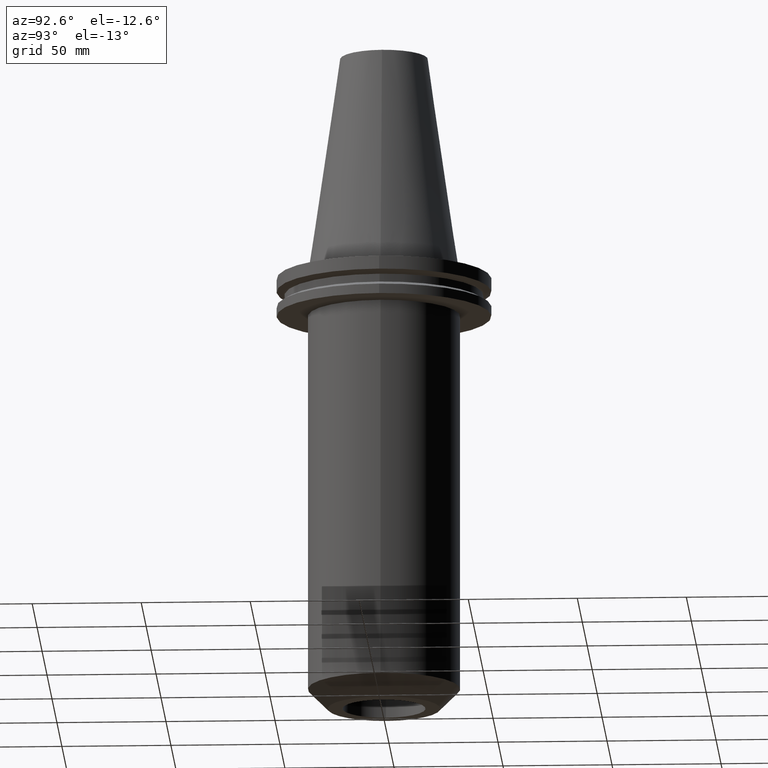
[diagram: clean part render]
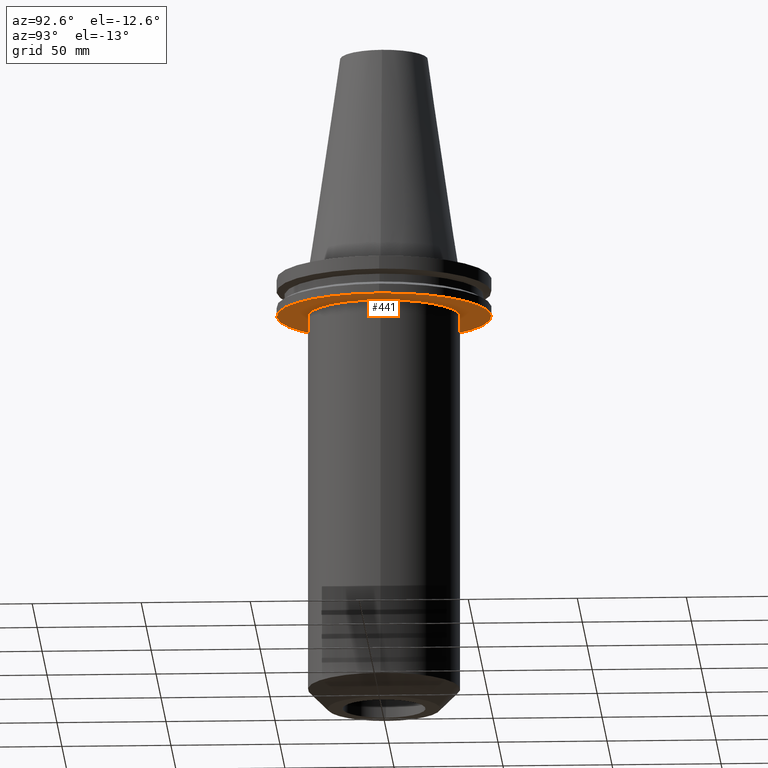
[diagram: same view with one face highlighted and labeled with its STEP entity id]
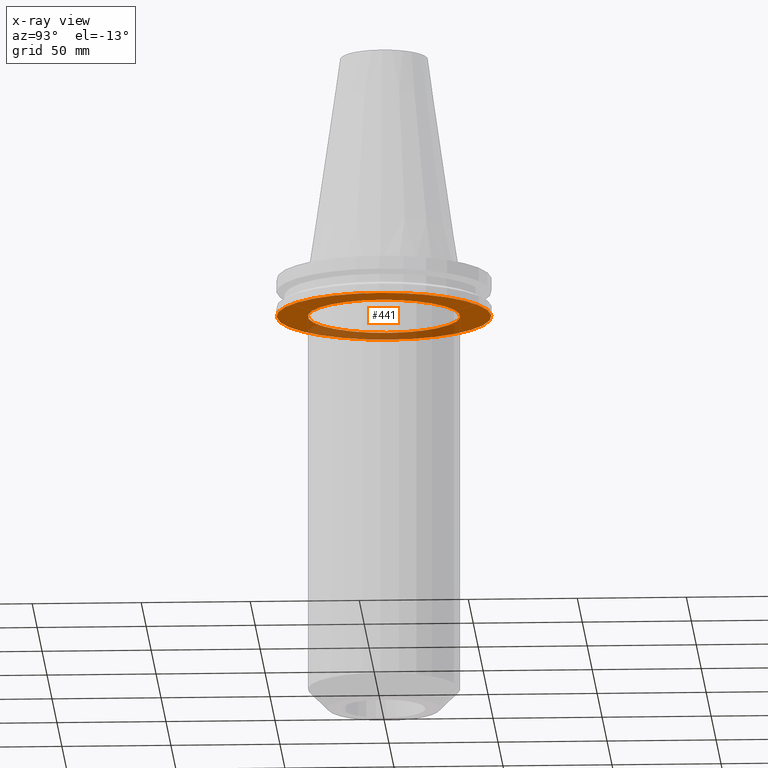
[diagram: x-ray of the same camera — body ghosted, the highlighted face saturated]
A machine part, auxiliary view. The second image highlights one B-rep face of the part: STEP entity #441.
The next image is the same camera in x-ray: the body ghosted, the highlighted face saturated — about 29% of this face is hidden behind the body in this view.
In plain terms, the highlighted planar face has unit normal (0, -0, 1).
Its self-contained STEP definition (entity closure, byte-faithful):
#3 = DIRECTION ( 'NONE',  ( 1.000000000000000000, 0.000000000000000000, 0.000000000000000000 ) ) ;
#6 = CARTESIAN_POINT ( 'NONE',  ( 0.000000000000000000, 0.000000000000000000, -19.04999999999999716 ) ) ;
#55 = AXIS2_PLACEMENT_3D ( 'NONE', #295, #172, #3 ) ;
#62 = CARTESIAN_POINT ( 'NONE',  ( 0.000000000000000000, 0.000000000000000000, -19.04999999999999716 ) ) ;
#67 = DIRECTION ( 'NONE',  ( 1.000000000000000000, 0.000000000000000000, 0.000000000000000000 ) ) ;
#70 = VERTEX_POINT ( 'NONE', #85 ) ;
#71 = CARTESIAN_POINT ( 'NONE',  ( 0.000000000000000000, 49.21499999999998920, -19.04999999999999716 ) ) ;
#83 = EDGE_LOOP ( 'NONE', ( #579, #771 ) ) ;
#85 = CARTESIAN_POINT ( 'NONE',  ( 49.21499999999998920, 0.000000000000000000, -19.04999999999999716 ) ) ;
#94 = EDGE_LOOP ( 'NONE', ( #404, #711 ) ) ;
#108 = CARTESIAN_POINT ( 'NONE',  ( -49.21499999999998920, 6.027099222003697037E-15, -19.04999999999999716 ) ) ;
#123 = DIRECTION ( 'NONE',  ( -0.000000000000000000, -0.000000000000000000, 1.000000000000000000 ) ) ;
#127 = AXIS2_PLACEMENT_3D ( 'NONE', #6, #537, #596 ) ;
#133 = FACE_BOUND ( 'NONE', #94, .T. ) ;
#163 = CIRCLE ( 'NONE', #127, 34.92499999999999716 ) ;
#172 = DIRECTION ( 'NONE',  ( -0.000000000000000000, -0.000000000000000000, 1.000000000000000000 ) ) ;
#217 = EDGE_CURVE ( 'NONE', #320, #70, #313, .T. ) ;
#221 = AXIS2_PLACEMENT_3D ( 'NONE', #71, #449, #321 ) ;
#285 = EDGE_CURVE ( 'NONE', #675, #719, #705, .T. ) ;
#295 = CARTESIAN_POINT ( 'NONE',  ( 0.000000000000000000, 0.000000000000000000, -19.04999999999999716 ) ) ;
#311 = CARTESIAN_POINT ( 'NONE',  ( 0.000000000000000000, 0.000000000000000000, -19.04999999999999716 ) ) ;
#313 = CIRCLE ( 'NONE', #55, 49.21499999999998920 ) ;
#318 = EDGE_CURVE ( 'NONE', #719, #675, #163, .T. ) ;
#320 = VERTEX_POINT ( 'NONE', #108 ) ;
#321 = DIRECTION ( 'NONE',  ( 1.000000000000000000, 0.000000000000000000, 0.000000000000000000 ) ) ;
#404 = ORIENTED_EDGE ( 'NONE', *, *, #285, .T. ) ;
#441 = ADVANCED_FACE ( 'NONE', ( #728, #133 ), #614, .F. ) ;
#449 = DIRECTION ( 'NONE',  ( 0.000000000000000000, -0.000000000000000000, 1.000000000000000000 ) ) ;
#471 = DIRECTION ( 'NONE',  ( -0.000000000000000000, -0.000000000000000000, 1.000000000000000000 ) ) ;
#472 = AXIS2_PLACEMENT_3D ( 'NONE', #311, #471, #530 ) ;
#493 = CARTESIAN_POINT ( 'NONE',  ( -34.92499999999999716, 4.277078946022130887E-15, -19.04999999999999716 ) ) ;
#530 = DIRECTION ( 'NONE',  ( 1.000000000000000000, 0.000000000000000000, 0.000000000000000000 ) ) ;
#537 = DIRECTION ( 'NONE',  ( -0.000000000000000000, -0.000000000000000000, 1.000000000000000000 ) ) ;
#579 = ORIENTED_EDGE ( 'NONE', *, *, #753, .F. ) ;
#585 = CIRCLE ( 'NONE', #650, 49.21499999999998920 ) ;
#596 = DIRECTION ( 'NONE',  ( 1.000000000000000000, 0.000000000000000000, 0.000000000000000000 ) ) ;
#614 = PLANE ( 'NONE',  #221 ) ;
#650 = AXIS2_PLACEMENT_3D ( 'NONE', #62, #123, #67 ) ;
#675 = VERTEX_POINT ( 'NONE', #720 ) ;
#705 = CIRCLE ( 'NONE', #472, 34.92499999999999716 ) ;
#711 = ORIENTED_EDGE ( 'NONE', *, *, #318, .T. ) ;
#719 = VERTEX_POINT ( 'NONE', #493 ) ;
#720 = CARTESIAN_POINT ( 'NONE',  ( 34.92499999999999716, 0.000000000000000000, -19.04999999999999716 ) ) ;
#728 = FACE_OUTER_BOUND ( 'NONE', #83, .T. ) ;
#753 = EDGE_CURVE ( 'NONE', #70, #320, #585, .T. ) ;
#771 = ORIENTED_EDGE ( 'NONE', *, *, #217, .F. ) ;